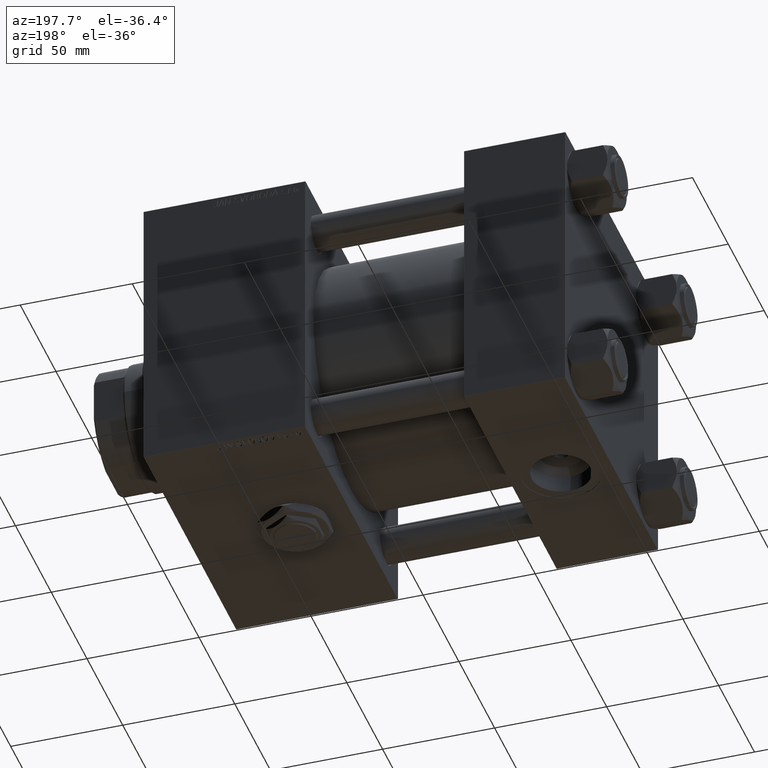
[diagram: clean part render]
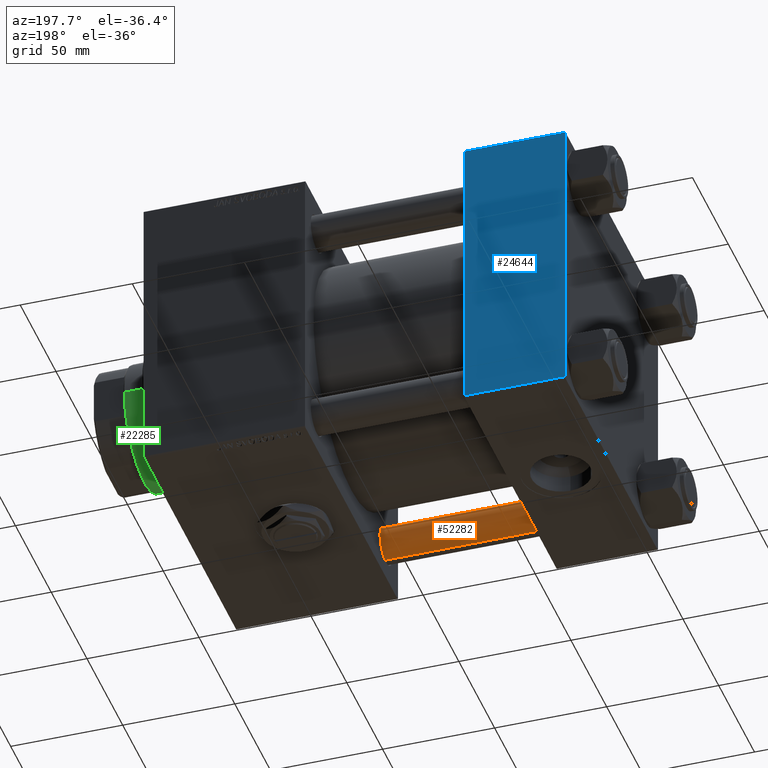
[diagram: same view with three faces highlighted in distinct colors, each labeled with its STEP entity id]
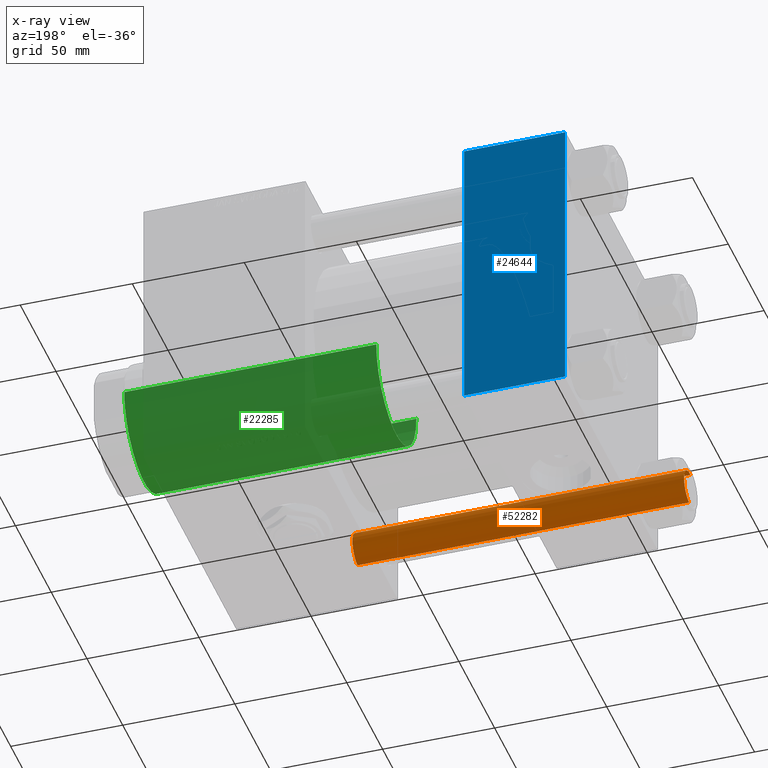
[diagram: x-ray of the same camera — body ghosted, the three highlighted faces saturated]
A machine part, auxiliary view with three faces highlighted in distinct colors.
The next image is the same camera in x-ray (body ghosted, the three faces saturated) — at least one of them is partly hidden behind the body in this view.
Their STEP definitions:

[orange] entity #52282 — the highlighted cylindrical surface (edge-blend (fillet) strip) has radius 8 mm, axis along (-1, -0, -0).
#3 = ORIENTED_EDGE ( 'NONE', *, *, #41762, .T. ) ;
#978 = DIRECTION ( 'NONE',  ( -0.000000000000000000, -0.000000000000000000, 1.000000000000000000 ) ) ;
#3707 = ORIENTED_EDGE ( 'NONE', *, *, #9240, .T. ) ;
#3832 = AXIS2_PLACEMENT_3D ( 'NONE', #6726, #10751, #39398 ) ;
#4974 = VERTEX_POINT ( 'NONE', #35171 ) ;
#6081 = EDGE_CURVE ( 'NONE', #9768, #15914, #28975, .T. ) ;
#6668 = LINE ( 'NONE', #47907, #52228 ) ;
#6726 = CARTESIAN_POINT ( 'NONE',  ( 0.000000000000000000, 0.000000000000000000, 148.5000000000000000 ) ) ;
#9240 = EDGE_CURVE ( 'NONE', #4974, #15914, #29486, .T. ) ;
#9768 = VERTEX_POINT ( 'NONE', #10453 ) ;
#9838 = CIRCLE ( 'NONE', #3832, 8.000000000000000000 ) ;
#10280 = EDGE_LOOP ( 'NONE', ( #30600, #33615, #3, #3707 ) ) ;
#10453 = CARTESIAN_POINT ( 'NONE',  ( 8.000000000000000000, 9.797174393178825657E-16, 148.5000000000000000 ) ) ;
#10751 = DIRECTION ( 'NONE',  ( 0.000000000000000000, 0.000000000000000000, -1.000000000000000000 ) ) ;
#11214 = DIRECTION ( 'NONE',  ( -0.000000000000000000, -0.000000000000000000, -1.000000000000000000 ) ) ;
#12264 = CARTESIAN_POINT ( 'NONE',  ( 0.000000000000000000, 0.000000000000000000, 0.5000000000000281997 ) ) ;
#12889 = CARTESIAN_POINT ( 'NONE',  ( 8.000000000000000000, 9.797174393178825657E-16, 0.5000000000000281997 ) ) ;
#13088 = VECTOR ( 'NONE', #29233, 1000.000000000000000 ) ;
#13529 = EDGE_CURVE ( 'NONE', #9768, #50027, #9838, .T. ) ;
#15914 = VERTEX_POINT ( 'NONE', #12889 ) ;
#15966 = CARTESIAN_POINT ( 'NONE',  ( 0.000000000000000000, 0.000000000000000000, 149.0000000000000000 ) ) ;
#17310 = DIRECTION ( 'NONE',  ( 1.000000000000000000, 0.000000000000000000, 0.000000000000000000 ) ) ;
#20503 = FACE_OUTER_BOUND ( 'NONE', #10280, .T. ) ;
#23738 = DIRECTION ( 'NONE',  ( -1.000000000000000000, 0.000000000000000000, 0.000000000000000000 ) ) ;
#28975 = LINE ( 'NONE', #41560, #13088 ) ;
#29233 = DIRECTION ( 'NONE',  ( -0.000000000000000000, -0.000000000000000000, -1.000000000000000000 ) ) ;
#29486 = CIRCLE ( 'NONE', #38018, 8.000000000000000000 ) ;
#29487 = AXIS2_PLACEMENT_3D ( 'NONE', #15966, #36058, #23738 ) ;
#30600 = ORIENTED_EDGE ( 'NONE', *, *, #6081, .F. ) ;
#33615 = ORIENTED_EDGE ( 'NONE', *, *, #13529, .T. ) ;
#35171 = CARTESIAN_POINT ( 'NONE',  ( -8.000000000000000000, 0.000000000000000000, 0.5000000000000281997 ) ) ;
#36058 = DIRECTION ( 'NONE',  ( -0.000000000000000000, -0.000000000000000000, -1.000000000000000000 ) ) ;
#38018 = AXIS2_PLACEMENT_3D ( 'NONE', #12264, #978, #17310 ) ;
#39398 = DIRECTION ( 'NONE',  ( 1.000000000000000000, 0.000000000000000000, 0.000000000000000000 ) ) ;
#40891 = CARTESIAN_POINT ( 'NONE',  ( -8.000000000000000000, 0.000000000000000000, 148.5000000000000000 ) ) ;
#41560 = CARTESIAN_POINT ( 'NONE',  ( 8.000000000000000000, 9.797174393178825657E-16, 149.0000000000000000 ) ) ;
#41762 = EDGE_CURVE ( 'NONE', #50027, #4974, #6668, .T. ) ;
#47907 = CARTESIAN_POINT ( 'NONE',  ( -8.000000000000000000, 0.000000000000000000, 149.0000000000000000 ) ) ;
#50027 = VERTEX_POINT ( 'NONE', #40891 ) ;
#52228 = VECTOR ( 'NONE', #11214, 1000.000000000000000 ) ;
#52282 = ADVANCED_FACE ( 'NONE', ( #20503 ), #52663, .T. ) ;
#52663 = CYLINDRICAL_SURFACE ( 'NONE', #29487, 8.000000000000000000 ) ;

[blue] entity #24644 — the highlighted planar face has unit normal (0, 1, 0).
#1384 = CARTESIAN_POINT ( 'NONE',  ( 0.000000000000000000, 65.00000000000000000, -64.49999999999995737 ) ) ;
#3162 = DIRECTION ( 'NONE',  ( 0.000000000000000000, 0.000000000000000000, -1.000000000000000000 ) ) ;
#3275 = LINE ( 'NONE', #27923, #27693 ) ;
#7451 = EDGE_CURVE ( 'NONE', #30528, #13324, #3275, .T. ) ;
#7532 = DIRECTION ( 'NONE',  ( 0.000000000000000000, 0.000000000000000000, -1.000000000000000000 ) ) ;
#9822 = VERTEX_POINT ( 'NONE', #25995 ) ;
#11470 = LINE ( 'NONE', #48695, #15406 ) ;
#13324 = VERTEX_POINT ( 'NONE', #1384 ) ;
#14345 = FACE_OUTER_BOUND ( 'NONE', #22223, .T. ) ;
#14352 = DIRECTION ( 'NONE',  ( 1.000000000000000000, 0.000000000000000000, 0.000000000000000000 ) ) ;
#15037 = CARTESIAN_POINT ( 'NONE',  ( 0.000000000000000000, 65.00000000000000000, 65.00000000000001421 ) ) ;
#15406 = VECTOR ( 'NONE', #3162, 1000.000000000000000 ) ;
#17565 = PLANE ( 'NONE',  #20902 ) ;
#18227 = VERTEX_POINT ( 'NONE', #41731 ) ;
#18879 = CARTESIAN_POINT ( 'NONE',  ( 45.00000000000000000, 65.00000000000000000, 64.49999999999998579 ) ) ;
#20902 = AXIS2_PLACEMENT_3D ( 'NONE', #26137, #33917, #50252 ) ;
#22223 = EDGE_LOOP ( 'NONE', ( #32831, #31171, #39683, #51853 ) ) ;
#24644 = ADVANCED_FACE ( 'NONE', ( #14345 ), #17565, .T. ) ;
#25995 = CARTESIAN_POINT ( 'NONE',  ( 45.00000000000000000, 65.00000000000000000, 64.49999999999998579 ) ) ;
#26137 = CARTESIAN_POINT ( 'NONE',  ( 45.00000000000000000, 65.00000000000000000, 65.00000000000001421 ) ) ;
#27693 = VECTOR ( 'NONE', #52826, 1000.000000000000000 ) ;
#27923 = CARTESIAN_POINT ( 'NONE',  ( 45.00000000000000000, 65.00000000000000000, -64.49999999999995737 ) ) ;
#30528 = VERTEX_POINT ( 'NONE', #42973 ) ;
#31171 = ORIENTED_EDGE ( 'NONE', *, *, #7451, .T. ) ;
#32017 = VECTOR ( 'NONE', #14352, 1000.000000000000000 ) ;
#32831 = ORIENTED_EDGE ( 'NONE', *, *, #40963, .T. ) ;
#33917 = DIRECTION ( 'NONE',  ( -0.000000000000000000, 1.000000000000000000, 0.000000000000000000 ) ) ;
#35661 = LINE ( 'NONE', #15037, #36313 ) ;
#36313 = VECTOR ( 'NONE', #7532, 1000.000000000000000 ) ;
#38722 = LINE ( 'NONE', #18879, #32017 ) ;
#39683 = ORIENTED_EDGE ( 'NONE', *, *, #51650, .F. ) ;
#40963 = EDGE_CURVE ( 'NONE', #9822, #30528, #11470, .T. ) ;
#41731 = CARTESIAN_POINT ( 'NONE',  ( 0.000000000000000000, 65.00000000000000000, 64.49999999999998579 ) ) ;
#42973 = CARTESIAN_POINT ( 'NONE',  ( 45.00000000000000000, 65.00000000000000000, -64.49999999999995737 ) ) ;
#48695 = CARTESIAN_POINT ( 'NONE',  ( 45.00000000000000000, 65.00000000000000000, 65.00000000000001421 ) ) ;
#50252 = DIRECTION ( 'NONE',  ( 0.000000000000000000, -0.000000000000000000, 1.000000000000000000 ) ) ;
#50984 = EDGE_CURVE ( 'NONE', #18227, #9822, #38722, .T. ) ;
#51650 = EDGE_CURVE ( 'NONE', #18227, #13324, #35661, .T. ) ;
#51853 = ORIENTED_EDGE ( 'NONE', *, *, #50984, .T. ) ;
#52826 = DIRECTION ( 'NONE',  ( -1.000000000000000000, 0.000000000000000000, 0.000000000000000000 ) ) ;

[green] entity #22285 — the highlighted cylindrical surface (partial cylindrical patch) has radius 28 mm, axis along (-1, 0, 0).
#821 = VERTEX_POINT ( 'NONE', #39001 ) ;
#1586 = CIRCLE ( 'NONE', #8453, 28.00000000000000000 ) ;
#2167 = DIRECTION ( 'NONE',  ( -1.000000000000000000, 0.000000000000000000, 0.000000000000000000 ) ) ;
#3635 = EDGE_LOOP ( 'NONE', ( #52319, #40417, #34391, #15419 ) ) ;
#3977 = EDGE_CURVE ( 'NONE', #30196, #821, #32044, .T. ) ;
#5010 = EDGE_CURVE ( 'NONE', #20485, #8139, #15864, .T. ) ;
#8139 = VERTEX_POINT ( 'NONE', #15734 ) ;
#8453 = AXIS2_PLACEMENT_3D ( 'NONE', #37655, #20517, #12498 ) ;
#11354 = CARTESIAN_POINT ( 'NONE',  ( 0.000000000000000000, 0.000000000000000000, 163.5000000000000000 ) ) ;
#12181 = VECTOR ( 'NONE', #12489, 1000.000000000000000 ) ;
#12442 = AXIS2_PLACEMENT_3D ( 'NONE', #31088, #38856, #2167 ) ;
#12489 = DIRECTION ( 'NONE',  ( -0.000000000000000000, -0.000000000000000000, -1.000000000000000000 ) ) ;
#12498 = DIRECTION ( 'NONE',  ( 1.000000000000000000, 0.000000000000000000, 0.000000000000000000 ) ) ;
#15419 = ORIENTED_EDGE ( 'NONE', *, *, #5010, .F. ) ;
#15734 = CARTESIAN_POINT ( 'NONE',  ( -28.00000000000000000, 0.000000000000000000, 51.00000000000000000 ) ) ;
#15864 = LINE ( 'NONE', #41028, #42994 ) ;
#15974 = CARTESIAN_POINT ( 'NONE',  ( 28.00000000000000000, 3.429011037612589276E-15, 164.0000000000000000 ) ) ;
#20485 = VERTEX_POINT ( 'NONE', #25344 ) ;
#20517 = DIRECTION ( 'NONE',  ( 0.000000000000000000, 0.000000000000000000, 1.000000000000000000 ) ) ;
#22285 = ADVANCED_FACE ( 'NONE', ( #46638 ), #50388, .T. ) ;
#23928 = DIRECTION ( 'NONE',  ( 0.000000000000000000, 0.000000000000000000, -1.000000000000000000 ) ) ;
#25344 = CARTESIAN_POINT ( 'NONE',  ( -28.00000000000000000, 0.000000000000000000, 163.5000000000000000 ) ) ;
#25867 = CIRCLE ( 'NONE', #27591, 28.00000000000000000 ) ;
#27223 = CARTESIAN_POINT ( 'NONE',  ( 28.00000000000000000, 3.429011037612589276E-15, 163.5000000000000000 ) ) ;
#27591 = AXIS2_PLACEMENT_3D ( 'NONE', #11354, #23928, #40264 ) ;
#30196 = VERTEX_POINT ( 'NONE', #27223 ) ;
#31088 = CARTESIAN_POINT ( 'NONE',  ( 0.000000000000000000, 0.000000000000000000, 164.0000000000000000 ) ) ;
#32044 = LINE ( 'NONE', #15974, #12181 ) ;
#32207 = DIRECTION ( 'NONE',  ( -0.000000000000000000, -0.000000000000000000, -1.000000000000000000 ) ) ;
#34391 = ORIENTED_EDGE ( 'NONE', *, *, #38195, .T. ) ;
#37655 = CARTESIAN_POINT ( 'NONE',  ( 0.000000000000000000, 0.000000000000000000, 51.00000000000000000 ) ) ;
#38195 = EDGE_CURVE ( 'NONE', #821, #8139, #1586, .T. ) ;
#38856 = DIRECTION ( 'NONE',  ( -0.000000000000000000, -0.000000000000000000, -1.000000000000000000 ) ) ;
#39001 = CARTESIAN_POINT ( 'NONE',  ( 28.00000000000000000, 3.429011037612589276E-15, 51.00000000000000000 ) ) ;
#40264 = DIRECTION ( 'NONE',  ( 1.000000000000000000, 0.000000000000000000, 0.000000000000000000 ) ) ;
#40417 = ORIENTED_EDGE ( 'NONE', *, *, #3977, .T. ) ;
#41028 = CARTESIAN_POINT ( 'NONE',  ( -28.00000000000000000, 0.000000000000000000, 164.0000000000000000 ) ) ;
#42994 = VECTOR ( 'NONE', #32207, 1000.000000000000000 ) ;
#46638 = FACE_OUTER_BOUND ( 'NONE', #3635, .T. ) ;
#46730 = EDGE_CURVE ( 'NONE', #20485, #30196, #25867, .T. ) ;
#50388 = CYLINDRICAL_SURFACE ( 'NONE', #12442, 28.00000000000000000 ) ;
#52319 = ORIENTED_EDGE ( 'NONE', *, *, #46730, .T. ) ;